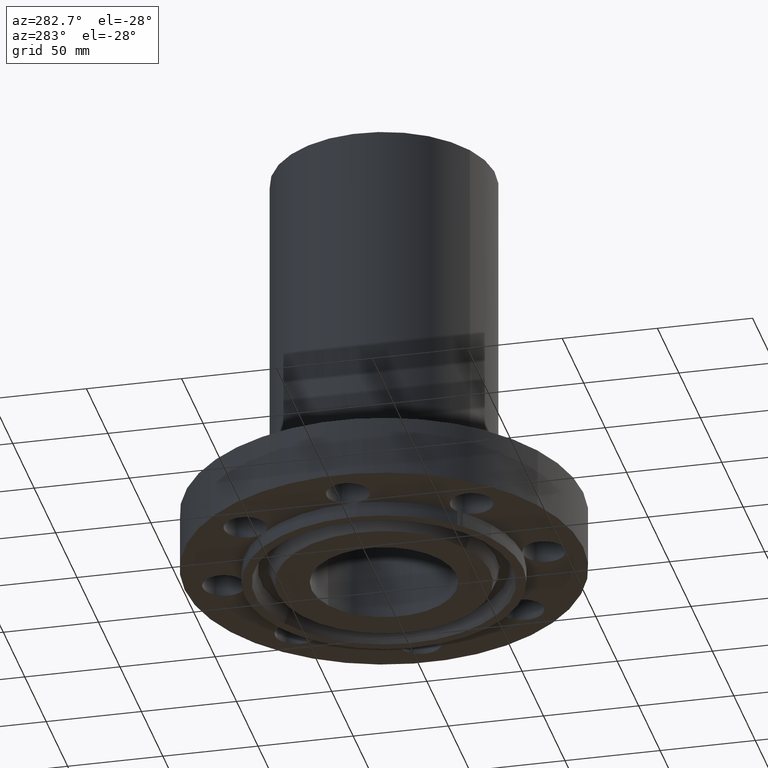
[diagram: clean part render]
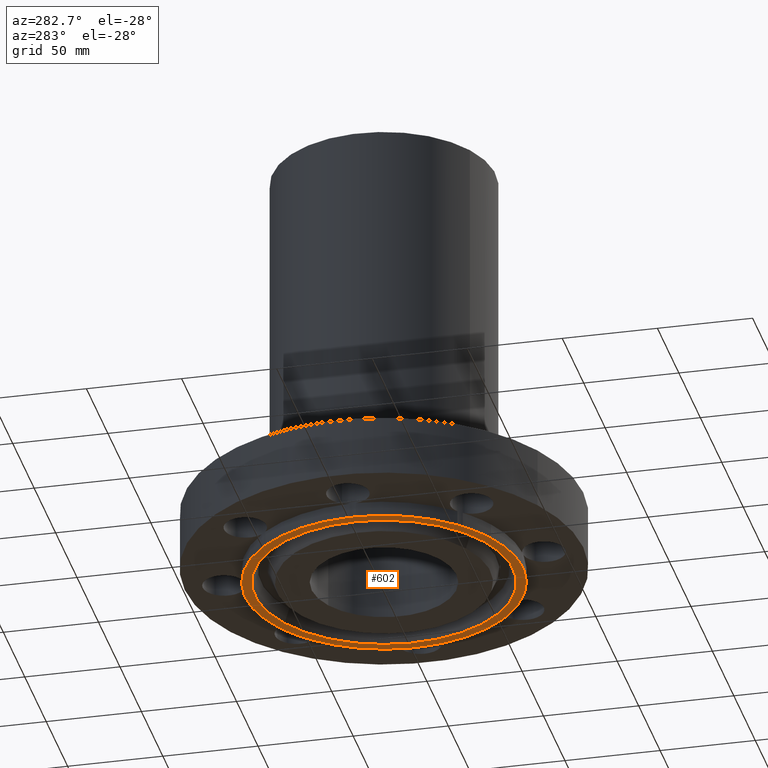
[diagram: same view with one face highlighted and labeled with its STEP entity id]
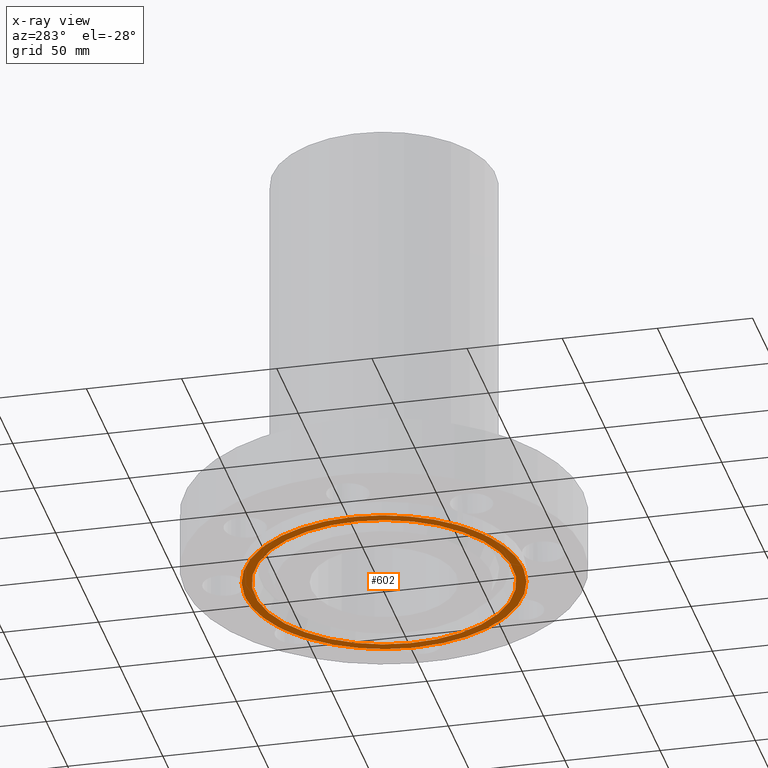
[diagram: x-ray of the same camera — body ghosted, the highlighted face saturated]
A machine part, auxiliary view. The second image highlights one B-rep face of the part: STEP entity #602.
The next image is the same camera in x-ray: the body ghosted, the highlighted face saturated — about 0% of this face is hidden behind the body in this view.
In plain terms, the highlighted planar face has unit normal (0, 0, -1).
Its self-contained STEP definition (entity closure, byte-faithful):
#378=AXIS2_PLACEMENT_3D('Circle Axis2P3D',#376,#377,$) ;
#445=AXIS2_PLACEMENT_3D('Plane Axis2P3D',#442,#443,#444) ;
#449=AXIS2_PLACEMENT_3D('Circle Axis2P3D',#447,#448,$) ;
#458=AXIS2_PLACEMENT_3D('Circle Axis2P3D',#456,#457,$) ;
#465=AXIS2_PLACEMENT_3D('Circle Axis2P3D',#463,#464,$) ;
#472=AXIS2_PLACEMENT_3D('Circle Axis2P3D',#470,#471,$) ;
#479=AXIS2_PLACEMENT_3D('Circle Axis2P3D',#477,#478,$) ;
#486=AXIS2_PLACEMENT_3D('Circle Axis2P3D',#484,#485,$) ;
#493=AXIS2_PLACEMENT_3D('Circle Axis2P3D',#491,#492,$) ;
#500=AXIS2_PLACEMENT_3D('Circle Axis2P3D',#498,#499,$) ;
#507=AXIS2_PLACEMENT_3D('Circle Axis2P3D',#505,#506,$) ;
#514=AXIS2_PLACEMENT_3D('Circle Axis2P3D',#512,#513,$) ;
#521=AXIS2_PLACEMENT_3D('Circle Axis2P3D',#519,#520,$) ;
#528=AXIS2_PLACEMENT_3D('Circle Axis2P3D',#526,#527,$) ;
#535=AXIS2_PLACEMENT_3D('Circle Axis2P3D',#533,#534,$) ;
#542=AXIS2_PLACEMENT_3D('Circle Axis2P3D',#540,#541,$) ;
#549=AXIS2_PLACEMENT_3D('Circle Axis2P3D',#547,#548,$) ;
#554=AXIS2_PLACEMENT_3D('Circle Axis2P3D',#552,#553,$) ;
#561=AXIS2_PLACEMENT_3D('Circle Axis2P3D',#559,#560,$) ;
#586=AXIS2_PLACEMENT_3D('Circle Axis2P3D',#584,#585,$) ;
#595=AXIS2_PLACEMENT_3D('Circle Axis2P3D',#593,#594,$) ;
#373=CARTESIAN_POINT('Vertex',(2.87433912388,-0.0616409036851,-0.313000000001)) ;
#376=CARTESIAN_POINT('Axis2P3D Location',(3.31000000001,0.,-0.313000000001)) ;
#380=CARTESIAN_POINT('Vertex',(2.87433912388,0.0616409036851,-0.313000000001)) ;
#442=CARTESIAN_POINT('Axis2P3D Location',(0.,1.50000000001,-0.313000000001)) ;
#447=CARTESIAN_POINT('Axis2P3D Location',(0.,0.,-0.313000000001)) ;
#451=CARTESIAN_POINT('Vertex',(1.98887798493,-2.07605138692,-0.313000000001)) ;
#453=CARTESIAN_POINT('Vertex',(0.0616409036851,-2.87433912388,-0.313000000001)) ;
#456=CARTESIAN_POINT('Axis2P3D Location',(-3.1470888887E-016,-3.31000000001,-0.313000000001)) ;
#460=CARTESIAN_POINT('Vertex',(-0.0616409036851,-2.87433912388,-0.313000000001)) ;
#463=CARTESIAN_POINT('Axis2P3D Location',(0.,0.,-0.313000000001)) ;
#467=CARTESIAN_POINT('Vertex',(-1.37834842349,-2.52304986544,-0.313000000001)) ;
#470=CARTESIAN_POINT('Axis2P3D Location',(0.,0.,-0.313000000001)) ;
#474=CARTESIAN_POINT('Vertex',(-1.98887798493,-2.07605138692,-0.313000000001)) ;
#477=CARTESIAN_POINT('Axis2P3D Location',(-2.34052344574,-2.34052344574,-0.313000000001)) ;
#481=CARTESIAN_POINT('Vertex',(-2.07605138692,-1.98887798493,-0.313000000001)) ;
#484=CARTESIAN_POINT('Axis2P3D Location',(0.,0.,-0.313000000001)) ;
#488=CARTESIAN_POINT('Vertex',(-2.87433912388,-0.0616409036851,-0.313000000001)) ;
#491=CARTESIAN_POINT('Axis2P3D Location',(-3.31000000001,-2.79741234551E-016,-0.313000000001)) ;
#495=CARTESIAN_POINT('Vertex',(-2.87433912388,0.0616409036851,-0.313000000001)) ;
#498=CARTESIAN_POINT('Axis2P3D Location',(0.,0.,-0.313000000001)) ;
#502=CARTESIAN_POINT('Vertex',(-2.07605138692,1.98887798493,-0.313000000001)) ;
#505=CARTESIAN_POINT('Axis2P3D Location',(-2.34052344574,2.34052344574,-0.313000000001)) ;
#509=CARTESIAN_POINT('Vertex',(-1.98887798493,2.07605138692,-0.313000000001)) ;
#512=CARTESIAN_POINT('Axis2P3D Location',(0.,0.,-0.313000000001)) ;
#516=CARTESIAN_POINT('Vertex',(-0.0616409036851,2.87433912388,-0.313000000001)) ;
#519=CARTESIAN_POINT('Axis2P3D Location',(-6.469016049E-016,3.31000000001,-0.313000000001)) ;
#523=CARTESIAN_POINT('Vertex',(0.0616409036851,2.87433912388,-0.313000000001)) ;
#526=CARTESIAN_POINT('Axis2P3D Location',(0.,0.,-0.313000000001)) ;
#530=CARTESIAN_POINT('Vertex',(1.37834842349,2.52304986544,-0.313000000001)) ;
#533=CARTESIAN_POINT('Axis2P3D Location',(0.,0.,-0.313000000001)) ;
#537=CARTESIAN_POINT('Vertex',(1.98887798493,2.07605138692,-0.313000000001)) ;
#540=CARTESIAN_POINT('Axis2P3D Location',(2.34052344574,2.34052344574,-0.313000000001)) ;
#544=CARTESIAN_POINT('Vertex',(2.07605138692,1.98887798493,-0.313000000001)) ;
#547=CARTESIAN_POINT('Axis2P3D Location',(0.,0.,-0.313000000001)) ;
#552=CARTESIAN_POINT('Axis2P3D Location',(0.,0.,-0.313000000001)) ;
#556=CARTESIAN_POINT('Vertex',(2.07605138692,-1.98887798493,-0.313000000001)) ;
#559=CARTESIAN_POINT('Axis2P3D Location',(2.34052344574,-2.34052344574,-0.313000000001)) ;
#584=CARTESIAN_POINT('Axis2P3D Location',(0.,0.,-0.313000000001)) ;
#588=CARTESIAN_POINT('Vertex',(1.28102503916,2.34490060538,-0.313000000001)) ;
#590=CARTESIAN_POINT('Vertex',(-1.28102503916,-2.34490060538,-0.313000000001)) ;
#593=CARTESIAN_POINT('Axis2P3D Location',(0.,0.,-0.313000000001)) ;
#377=DIRECTION('Axis2P3D Direction',(0.,-0.,0.0393700787402)) ;
#443=DIRECTION('Axis2P3D Direction',(0.,0.,-0.0393700787402)) ;
#444=DIRECTION('Axis2P3D XDirection',(0.0393700787402,0.,0.)) ;
#448=DIRECTION('Axis2P3D Direction',(0.,0.,-0.0393700787402)) ;
#457=DIRECTION('Axis2P3D Direction',(0.,0.,-0.0393700787402)) ;
#464=DIRECTION('Axis2P3D Direction',(0.,0.,-0.0393700787402)) ;
#471=DIRECTION('Axis2P3D Direction',(0.,0.,-0.0393700787402)) ;
#478=DIRECTION('Axis2P3D Direction',(0.,0.,-0.0393700787402)) ;
#485=DIRECTION('Axis2P3D Direction',(0.,0.,-0.0393700787402)) ;
#492=DIRECTION('Axis2P3D Direction',(0.,0.,-0.0393700787402)) ;
#499=DIRECTION('Axis2P3D Direction',(0.,0.,-0.0393700787402)) ;
#506=DIRECTION('Axis2P3D Direction',(0.,0.,-0.0393700787402)) ;
#513=DIRECTION('Axis2P3D Direction',(0.,0.,-0.0393700787402)) ;
#520=DIRECTION('Axis2P3D Direction',(0.,0.,-0.0393700787402)) ;
#527=DIRECTION('Axis2P3D Direction',(0.,0.,-0.0393700787402)) ;
#534=DIRECTION('Axis2P3D Direction',(0.,0.,-0.0393700787402)) ;
#541=DIRECTION('Axis2P3D Direction',(0.,0.,-0.0393700787402)) ;
#548=DIRECTION('Axis2P3D Direction',(0.,0.,-0.0393700787402)) ;
#553=DIRECTION('Axis2P3D Direction',(0.,0.,-0.0393700787402)) ;
#560=DIRECTION('Axis2P3D Direction',(0.,0.,-0.0393700787402)) ;
#585=DIRECTION('Axis2P3D Direction',(0.,0.,-0.0393700787402)) ;
#594=DIRECTION('Axis2P3D Direction',(0.,0.,-0.0393700787402)) ;
#565=ORIENTED_EDGE('',*,*,#455,.T.) ;
#566=ORIENTED_EDGE('',*,*,#462,.F.) ;
#567=ORIENTED_EDGE('',*,*,#469,.T.) ;
#568=ORIENTED_EDGE('',*,*,#476,.T.) ;
#569=ORIENTED_EDGE('',*,*,#483,.F.) ;
#570=ORIENTED_EDGE('',*,*,#490,.T.) ;
#571=ORIENTED_EDGE('',*,*,#497,.F.) ;
#572=ORIENTED_EDGE('',*,*,#504,.T.) ;
#573=ORIENTED_EDGE('',*,*,#511,.F.) ;
#574=ORIENTED_EDGE('',*,*,#518,.T.) ;
#575=ORIENTED_EDGE('',*,*,#525,.F.) ;
#576=ORIENTED_EDGE('',*,*,#532,.T.) ;
#577=ORIENTED_EDGE('',*,*,#539,.T.) ;
#578=ORIENTED_EDGE('',*,*,#546,.F.) ;
#579=ORIENTED_EDGE('',*,*,#551,.T.) ;
#580=ORIENTED_EDGE('',*,*,#382,.F.) ;
#581=ORIENTED_EDGE('',*,*,#558,.T.) ;
#582=ORIENTED_EDGE('',*,*,#563,.F.) ;
#599=ORIENTED_EDGE('',*,*,#592,.F.) ;
#600=ORIENTED_EDGE('',*,*,#597,.F.) ;
#601=FACE_BOUND('',#598,.T.) ;
#602=ADVANCED_FACE('PartBody',(#583,#601),#446,.T.) ;
#379=CIRCLE('generated circle',#378,0.440000000002) ;
#450=CIRCLE('generated circle',#449,2.87500000001) ;
#459=CIRCLE('generated circle',#458,0.440000000002) ;
#466=CIRCLE('generated circle',#465,2.87500000001) ;
#473=CIRCLE('generated circle',#472,2.87500000001) ;
#480=CIRCLE('generated circle',#479,0.440000000002) ;
#487=CIRCLE('generated circle',#486,2.87500000001) ;
#494=CIRCLE('generated circle',#493,0.440000000002) ;
#501=CIRCLE('generated circle',#500,2.87500000001) ;
#508=CIRCLE('generated circle',#507,0.440000000002) ;
#515=CIRCLE('generated circle',#514,2.87500000001) ;
#522=CIRCLE('generated circle',#521,0.440000000002) ;
#529=CIRCLE('generated circle',#528,2.87500000001) ;
#536=CIRCLE('generated circle',#535,2.87500000001) ;
#543=CIRCLE('generated circle',#542,0.440000000002) ;
#550=CIRCLE('generated circle',#549,2.87500000001) ;
#555=CIRCLE('generated circle',#554,2.87500000001) ;
#562=CIRCLE('generated circle',#561,0.440000000002) ;
#587=CIRCLE('generated circle',#586,2.67200000001) ;
#596=CIRCLE('generated circle',#595,2.67200000001) ;
#382=EDGE_CURVE('',#374,#381,#379,.F.) ;
#455=EDGE_CURVE('',#452,#454,#450,.T.) ;
#462=EDGE_CURVE('',#461,#454,#459,.T.) ;
#469=EDGE_CURVE('',#461,#468,#466,.T.) ;
#476=EDGE_CURVE('',#468,#475,#473,.T.) ;
#483=EDGE_CURVE('',#482,#475,#480,.T.) ;
#490=EDGE_CURVE('',#482,#489,#487,.T.) ;
#497=EDGE_CURVE('',#496,#489,#494,.T.) ;
#504=EDGE_CURVE('',#496,#503,#501,.T.) ;
#511=EDGE_CURVE('',#510,#503,#508,.T.) ;
#518=EDGE_CURVE('',#510,#517,#515,.T.) ;
#525=EDGE_CURVE('',#524,#517,#522,.T.) ;
#532=EDGE_CURVE('',#524,#531,#529,.T.) ;
#539=EDGE_CURVE('',#531,#538,#536,.T.) ;
#546=EDGE_CURVE('',#545,#538,#543,.T.) ;
#551=EDGE_CURVE('',#545,#381,#550,.T.) ;
#558=EDGE_CURVE('',#374,#557,#555,.T.) ;
#563=EDGE_CURVE('',#452,#557,#562,.T.) ;
#592=EDGE_CURVE('',#589,#591,#587,.T.) ;
#597=EDGE_CURVE('',#591,#589,#596,.T.) ;
#564=EDGE_LOOP('',(#565,#566,#567,#568,#569,#570,#571,#572,#573,#574,#575,#576,#577,#578,#579,#580,#581,#582)) ;
#598=EDGE_LOOP('',(#599,#600)) ;
#583=FACE_OUTER_BOUND('',#564,.T.) ;
#446=PLANE('',#445) ;
#374=VERTEX_POINT('',#373) ;
#381=VERTEX_POINT('',#380) ;
#452=VERTEX_POINT('',#451) ;
#454=VERTEX_POINT('',#453) ;
#461=VERTEX_POINT('',#460) ;
#468=VERTEX_POINT('',#467) ;
#475=VERTEX_POINT('',#474) ;
#482=VERTEX_POINT('',#481) ;
#489=VERTEX_POINT('',#488) ;
#496=VERTEX_POINT('',#495) ;
#503=VERTEX_POINT('',#502) ;
#510=VERTEX_POINT('',#509) ;
#517=VERTEX_POINT('',#516) ;
#524=VERTEX_POINT('',#523) ;
#531=VERTEX_POINT('',#530) ;
#538=VERTEX_POINT('',#537) ;
#545=VERTEX_POINT('',#544) ;
#557=VERTEX_POINT('',#556) ;
#589=VERTEX_POINT('',#588) ;
#591=VERTEX_POINT('',#590) ;